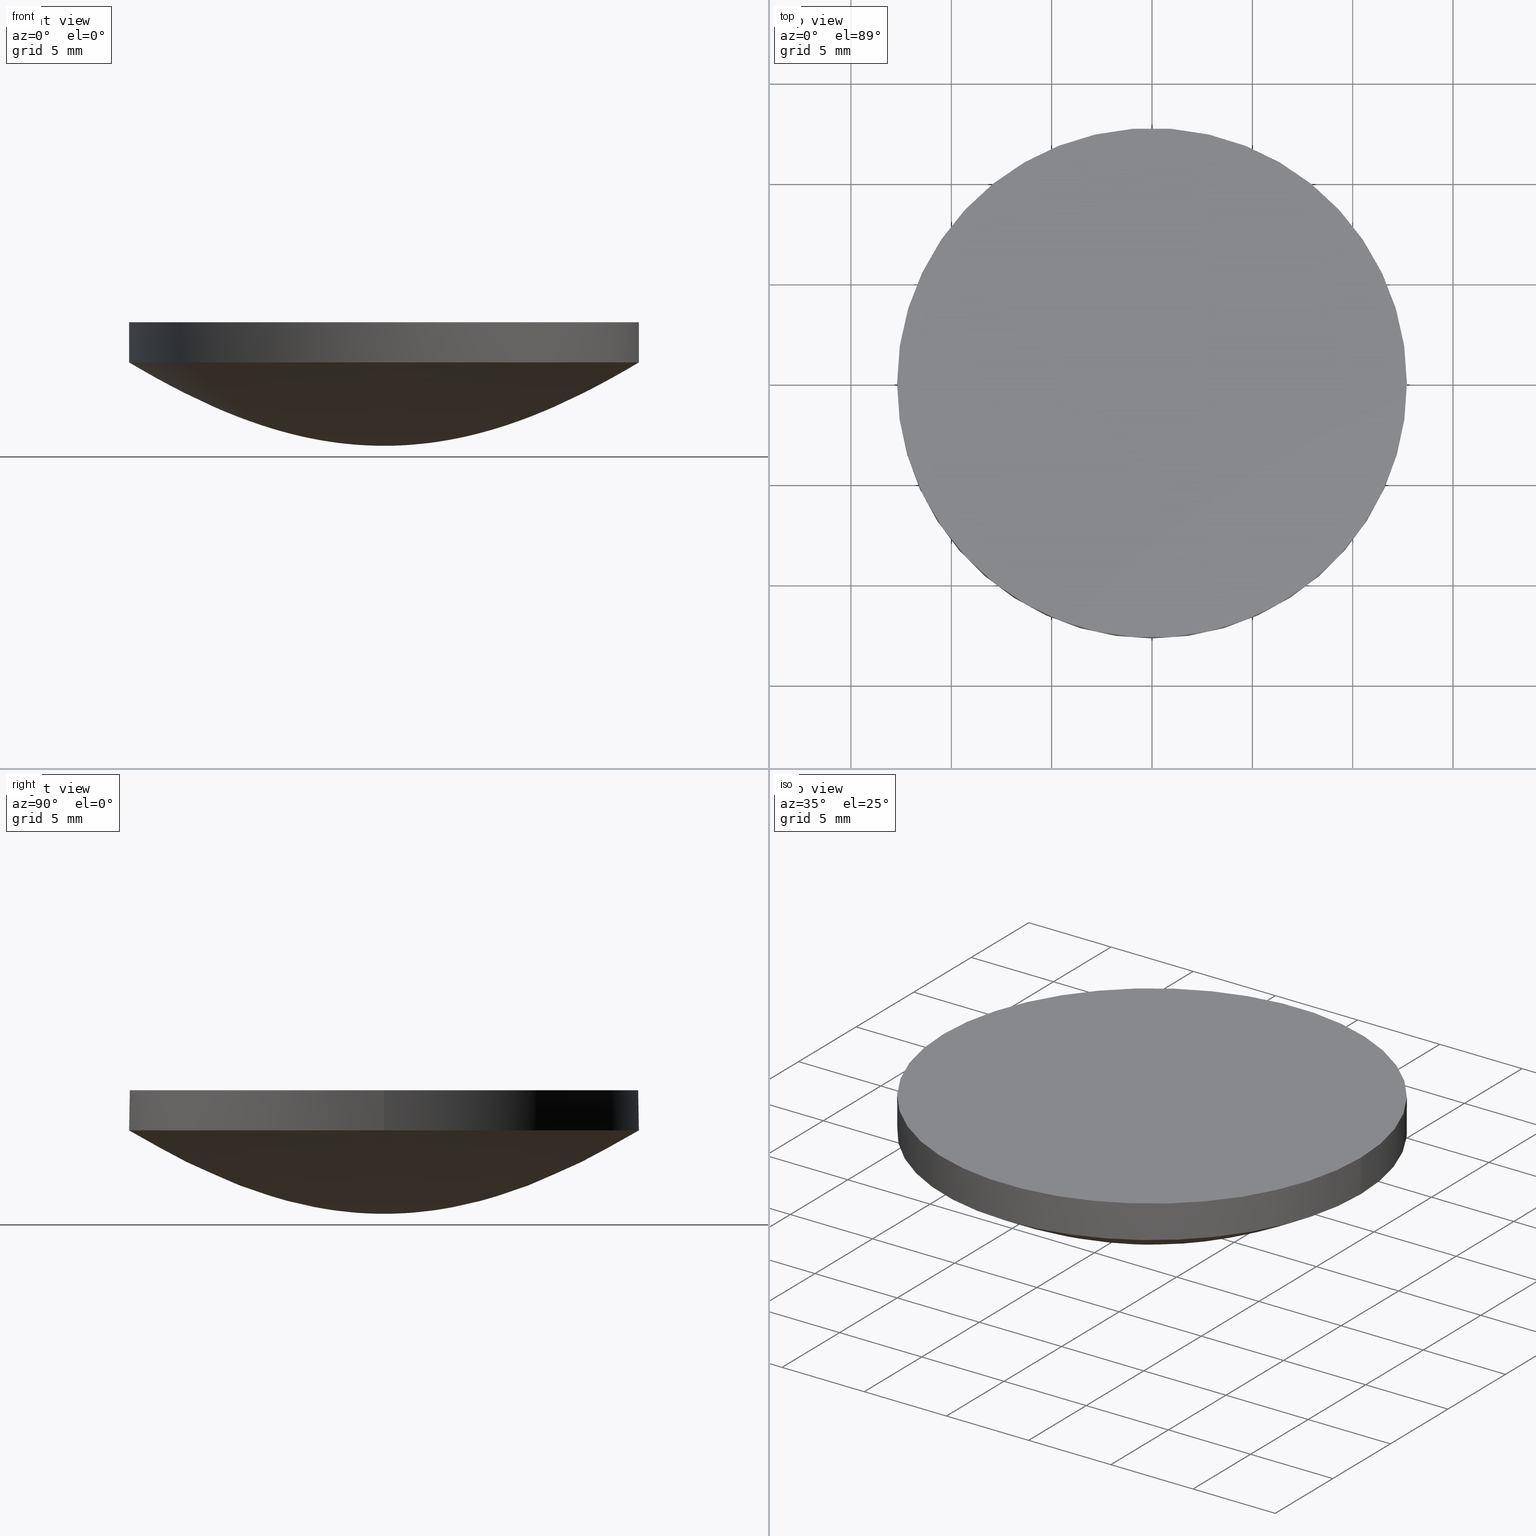
[diagram: canonical four-view strip — front | top / right | iso, engineering-drawing reading convention]
A machine part, canonical four-view strip (front | top / right | iso — engineering-drawing reading convention). The complete STEP part file that produces these views, byte-faithful:
ISO-10303-21;
HEADER;
FILE_DESCRIPTION (( 'STEP AP203' ),
    '1' );
FILE_NAME ('140003.STEP',
    '2021-03-15T05:14:26',
    ( '' ),
    ( '' ),
    'SwSTEP 2.0',
    'SolidWorks 2020',
    '' );
FILE_SCHEMA (( 'CONFIG_CONTROL_DESIGN' ));
ENDSEC;

DATA;
#1 = CARTESIAN_POINT ( 'NONE',  ( 3.533643029350660214, 3.533643029350660214, 0.3426028526766399240 ) ) ;
#2 = CARTESIAN_POINT ( 'NONE',  ( -1.210831606775240060E-15, -9.887190393330319793, 2.604185921054619879 ) ) ;
#3 = CARTESIAN_POINT ( 'NONE',  ( 3.533643029350660214, -3.533643029350660214, 0.3426028526766399240 ) ) ;
#4 = EDGE_CURVE ( 'NONE', #407, #146, #169, .T. ) ;
#5 = CARTESIAN_POINT ( 'NONE',  ( -0.2648454722978469955, 0.2648454722978469955, 0.000000000000000000 ) ) ;
#6 = CARTESIAN_POINT ( 'NONE',  ( -1.016444425008770159E-15, -8.299898597019639723, 1.861882940411679899 ) ) ;
#7 = CARTESIAN_POINT ( 'NONE',  ( -4.417324537593409595, 2.704831177879420105E-16, 0.5366860796835699610 ) ) ;
#8 = CARTESIAN_POINT ( 'NONE',  ( -1.856001890975160107, 1.136473387497079920E-16, 0.08818766913166510568 ) ) ;
#9 = CARTESIAN_POINT ( 'NONE',  ( -2.272946774994159840E-16, -1.856001890975160107, 0.08818766913166510568 ) ) ;
#10 = CARTESIAN_POINT ( 'NONE',  ( -6.711891333844019591, 6.711891333844019591, 1.230882758733029991 ) ) ;
#11 = CARTESIAN_POINT ( 'NONE',  ( 0.000000000000000000, 0.000000000000000000, 0.000000000000000000 ) ) ;
#12 = ORIENTED_EDGE ( 'NONE', *, *, #237, .F. ) ;
#13 = CARTESIAN_POINT ( 'NONE',  ( -6.006328210829880554, -6.006328210829880554, 0.9889388138680190732 ) ) ;
#14 = LINE ( 'NONE', #56, #486 ) ;
#15 = CARTESIAN_POINT ( 'NONE',  ( 0.9732602550666409336, -0.9732602550666409336, 0.01582297156970260271 ) ) ;
#16 = CARTESIAN_POINT ( 'NONE',  ( 0.000000000000000000, 0.000000000000000000, 0.000000000000000000 ) ) ;
#17 = AXIS2_PLACEMENT_3D ( 'NONE', #180, #139, #96 ) ;
#18 = CARTESIAN_POINT ( 'NONE',  ( -3.243421599182280136E-17, -0.2648454722978469955, 0.000000000000000000 ) ) ;
#19 = B_SPLINE_CURVE_WITH_KNOTS ( 'NONE', 3,
 ( #81, #374, #251, #2, #416, #6, #43, #371, #167, #334, #463, #50, #377, #9, #470, #383, #95 ),
 .UNSPECIFIED., .F., .F.,
 ( 4, 1, 1, 1, 1, 1, 1, 1, 1, 1, 1, 1, 1, 1, 4 ),
 ( 0.000000000000000000, 0.1791640992132879917, 0.2231798939688300065, 0.3101165522484389814, 0.3530374157725050255, 0.4378003480766050060, 0.4796424168566389978, 0.5623418750578970116, 0.6031992644791219771, 0.6840973856314990220, 0.7241381173626499912, 0.8036349153197349660, 0.8430909815456679723, 0.9412735238857999898, 1.000000000000000000 ),
 .UNSPECIFIED. ) ;
#20 = DATE_AND_TIME ( #389, #471 ) ;
#21 = CARTESIAN_POINT ( 'NONE',  ( 0.000000000000000000, 0.000000000000000000, 0.000000000000000000 ) ) ;
#22 = FACE_OUTER_BOUND ( 'NONE', #91, .T. ) ;
#23 = CARTESIAN_POINT ( 'NONE',  ( 0.2648454722978469955, -4.865132398773410035E-17, 0.000000000000000000 ) ) ;
#24 = CARTESIAN_POINT ( 'NONE',  ( 0.000000000000000000, 11.12995440244699985, 3.246620217075189885 ) ) ;
#25 = CARTESIAN_POINT ( 'NONE',  ( -8.219696238216940375E-16, -6.711891333844019591, 1.230882758733029991 ) ) ;
#26 = ORIENTED_EDGE ( 'NONE', *, *, #443, .F. ) ;
#27 = CARTESIAN_POINT ( 'NONE',  ( -1.555301434917140010E-15, -12.69999999999999929, 4.156662013466060124 ) ) ;
#28 = PERSON_AND_ORGANIZATION_ROLE ( 'creator' ) ;
#29 = CARTESIAN_POINT ( 'NONE',  ( 7.594569092104750396, -1.395099709432420083E-15, 1.566951937993940058 ) ) ;
#30 = CARTESIAN_POINT ( 'NONE',  ( 9.182068142219090845, -9.182068142219090845, 2.261185621592610051 ) ) ;
#31 = APPROVAL_ROLE ( '' ) ;
#32 = CARTESIAN_POINT ( 'NONE',  ( 0.000000000000000000, 7.594569092104750396, 1.566951937993940058 ) ) ;
#33 = SECURITY_CLASSIFICATION_LEVEL ( 'unclassified' ) ;
#34 = CARTESIAN_POINT ( 'NONE',  ( -9.887190393330330451, -9.887190393330319793, 2.604185921054619879 ) ) ;
#35 = EDGE_LOOP ( 'NONE', ( #72, #508, #116, #164 ) ) ;
#36 = CARTESIAN_POINT ( 'NONE',  ( 12.69999999999999929, -12.69999999999999929, 4.156662013466060124 ) ) ;
#37 = CARTESIAN_POINT ( 'NONE',  ( 0.000000000000000000, 6.711891333844019591, 1.230882758733029991 ) ) ;
#38 = CARTESIAN_POINT ( 'NONE',  ( 8.299898597019639723, 8.299898597019639723, 1.861882940411679899 ) ) ;
#39 = CARTESIAN_POINT ( 'NONE',  ( 3.533643029350660214, -6.491196937835459556E-16, 0.3426028526766399795 ) ) ;
#40 = CARTESIAN_POINT ( 'NONE',  ( 0.000000000000000000, 0.2648454722978469955, 0.000000000000000000 ) ) ;
#41 = CARTESIAN_POINT ( 'NONE',  ( -2.827615954408219778, 1.731415413892010225E-16, 0.2175848550245449986 ) ) ;
#42 = CARTESIAN_POINT ( 'NONE',  ( 2.827615954408219778, -5.194246241676019827E-16, 0.2175848550245449986 ) ) ;
#43 = CARTESIAN_POINT ( 'NONE',  ( -9.300664729549500750E-16, -7.594569092104750396, 1.566951937993940058 ) ) ;
#44 = CARTESIAN_POINT ( 'NONE',  ( 2.827615954408219778, -5.194246241676019827E-16, 0.2175848550245449986 ) ) ;
#45 = CARTESIAN_POINT ( 'NONE',  ( 0.000000000000000000, 4.417324537593409595, 0.5366860796835699610 ) ) ;
#46 = EDGE_LOOP ( 'NONE', ( #12, #420, #505, #193 ) ) ;
#47 = ADVANCED_FACE ( 'NONE', ( #160 ), #423, .T. ) ;
#48 = CARTESIAN_POINT ( 'NONE',  ( 2.827615954408220222, -2.827615954408220222, 0.2175848550245449986 ) ) ;
#49 = CARTESIAN_POINT ( 'NONE',  ( 0.000000000000000000, 0.2648454722978469955, 0.000000000000000000 ) ) ;
#50 = CARTESIAN_POINT ( 'NONE',  ( -4.327464625223639869E-16, -3.533643029350660214, 0.3426028526766399795 ) ) ;
#51 = CARTESIAN_POINT ( 'NONE',  ( -5.409662355758830350E-16, -4.417324537593409595, 0.5366860796835699610 ) ) ;
#52 = LOCAL_TIME ( 13, 14, 26.00000000000000000, #138 ) ;
#53 = CARTESIAN_POINT ( 'NONE',  ( 0.000000000000000000, 5.123128133085059766, 0.7216723207957019826 ) ) ;
#54 = CYLINDRICAL_SURFACE ( 'NONE', #186, 12.69999999999999929 ) ;
#55 = CARTESIAN_POINT ( 'NONE',  ( 0.000000000000000000, 1.856001890975160107, 0.08818766913166510568 ) ) ;
#56 = CARTESIAN_POINT ( 'NONE',  ( 12.70000000000000107, -8.881784197001250351E-16, 4.156662013466059236 ) ) ;
#57 = CARTESIAN_POINT ( 'NONE',  ( 0.000000000000000000, 11.12995440244699985, 3.246620217075189885 ) ) ;
#58 = APPLICATION_PROTOCOL_DEFINITION ( 'international standard', 'config_control_design', 1994, #310 ) ;
#59 = CARTESIAN_POINT ( 'NONE',  ( -3.851859888774471706E-31, 12.70000000000000284, 4.156662013466060124 ) ) ;
#60 =( NAMED_UNIT ( * ) PLANE_ANGLE_UNIT ( ) SI_UNIT ( $, .RADIAN. ) );
#61 = CARTESIAN_POINT ( 'NONE',  ( -12.00588458405299974, 7.351484063396529724E-16, 3.743064987588899939 ) ) ;
#62 = CARTESIAN_POINT ( 'NONE',  ( 12.00588458405299974, -2.205445219018960396E-15, 3.743064987588899939 ) ) ;
#63 = CARTESIAN_POINT ( 'NONE',  ( 0.000000000000000000, 0.9732602550666410446, 0.01582297156970259924 ) ) ;
#64 = CARTESIAN_POINT ( 'NONE',  ( -6.711891333844019591, 6.711891333844019591, 1.230882758733029991 ) ) ;
#65 = CARTESIAN_POINT ( 'NONE',  ( -9.887190393330319793, 9.887190393330319793, 2.604185921054619879 ) ) ;
#66 = CARTESIAN_POINT ( 'NONE',  ( 0.000000000000000000, 9.182068142219090845, 2.261185621592610051 ) ) ;
#67 = CARTESIAN_POINT ( 'NONE',  ( 0.000000000000000000, 9.182068142219090845, 2.261185621592610051 ) ) ;
#68 = CARTESIAN_POINT ( 'NONE',  ( 7.594569092104739738, -7.594569092104751284, 1.566951937993940058 ) ) ;
#69 = CARTESIAN_POINT ( 'NONE',  ( 8.299898597019639723, -8.299898597019639723, 1.861882940411679899 ) ) ;
#70 = AXIS2_PLACEMENT_3D ( 'NONE', #498, #122, #215 ) ;
#71 = CARTESIAN_POINT ( 'NONE',  ( -9.182068142219090845, 5.622395179960750118E-16, 2.261185621592610051 ) ) ;
#72 = ORIENTED_EDGE ( 'NONE', *, *, #503, .T. ) ;
#73 = CARTESIAN_POINT ( 'NONE',  ( -8.299898597019639723, -8.299898597019639723, 1.861882940411679899 ) ) ;
#74 = PRODUCT_DEFINITION_FORMATION_WITH_SPECIFIED_SOURCE ( '�κ�', '', #328, .NOT_KNOWN. ) ;
#75 = CARTESIAN_POINT ( 'NONE',  ( -6.006328210829880554, -6.006328210829880554, 0.9889388138680190732 ) ) ;
#76 = CARTESIAN_POINT ( 'NONE',  ( 9.182068142219090845, 9.182068142219090845, 2.261185621592610051 ) ) ;
#77 = CARTESIAN_POINT ( 'NONE',  ( -5.123128133085059766, 3.137011234902189770E-16, 0.7216723207957019826 ) ) ;
#78 = CARTESIAN_POINT ( 'NONE',  ( 0.000000000000000000, 6.711891333844019591, 1.230882758733029991 ) ) ;
#79 = CARTESIAN_POINT ( 'NONE',  ( 5.123128133085059766, -5.123128133085059766, 0.7216723207957019826 ) ) ;
#80 = CARTESIAN_POINT ( 'NONE',  ( 3.533643029350660214, -3.533643029350660214, 0.3426028526766399240 ) ) ;
#81 = CARTESIAN_POINT ( 'NONE',  ( -1.555301434917141588E-15, -12.70000000000000462, 4.156662013466060124 ) ) ;
#82 = CARTESIAN_POINT ( 'NONE',  ( 3.533643029350660214, -6.491196937835459556E-16, 0.3426028526766399795 ) ) ;
#83 = AXIS2_PLACEMENT_3D ( 'NONE', #515, #133, #409 ) ;
#84 = CARTESIAN_POINT ( 'NONE',  ( 0.9732602550666409336, 0.9732602550666409336, 0.01582297156970260271 ) ) ;
#85 = FACE_OUTER_BOUND ( 'NONE', #232, .T. ) ;
#86 = CARTESIAN_POINT ( 'NONE',  ( 5.123128133085059766, -9.411033704706559450E-16, 0.7216723207957019826 ) ) ;
#87 = CARTESIAN_POINT ( 'NONE',  ( 0.000000000000000000, 1.856001890975160107, 0.08818766913166510568 ) ) ;
#88 = DIRECTION ( 'NONE',  ( 1.000000000000000000, 0.000000000000000000, -6.829619984160658046E-17 ) ) ;
#89 = CARTESIAN_POINT ( 'NONE',  ( -1.856001890975160107, 1.856001890975160107, 0.08818766913166510568 ) ) ;
#90 = CARTESIAN_POINT ( 'NONE',  ( 0.000000000000000000, 0.2648454722978469955, 0.000000000000000000 ) ) ;
#91 = EDGE_LOOP ( 'NONE', ( #172, #26 ) ) ;
#92 = CARTESIAN_POINT ( 'NONE',  ( 1.856001890975160107, 1.856001890975160107, 0.08818766913166510568 ) ) ;
#93 = EDGE_CURVE ( 'NONE', #407, #189, #387, .T. ) ;
#94 = CARTESIAN_POINT ( 'NONE',  ( 0.000000000000000000, 0.000000000000000000, 0.000000000000000000 ) ) ;
#95 = CARTESIAN_POINT ( 'NONE',  ( 0.000000000000000000, 0.000000000000000000, 0.000000000000000000 ) ) ;
#96 = DIRECTION ( 'NONE',  ( 1.000000000000000000, 0.000000000000000000, -6.829619984160658046E-17 ) ) ;
#97 = CARTESIAN_POINT ( 'NONE',  ( 0.000000000000000000, 0.000000000000000000, 0.000000000000000000 ) ) ;
#98 = CARTESIAN_POINT ( 'NONE',  ( 0.000000000000000000, 12.00588458405299974, 3.743064987588899939 ) ) ;
#99 =( NAMED_UNIT ( * ) SI_UNIT ( $, .STERADIAN. ) SOLID_ANGLE_UNIT ( ) );
#100 = CARTESIAN_POINT ( 'NONE',  ( 0.000000000000000000, 12.69999999999999929, 4.156662013466060124 ) ) ;
#101 = APPROVAL_STATUS ( 'not_yet_approved' ) ;
#102 = CARTESIAN_POINT ( 'NONE',  ( 0.000000000000000000, 0.9732602550666410446, 0.01582297156970259924 ) ) ;
#103 = COORDINATED_UNIVERSAL_TIME_OFFSET ( 8, 0, .AHEAD. ) ;
#104 = CARTESIAN_POINT ( 'NONE',  ( -12.69999999999999929, -12.69999999999999929, 4.156662013466060124 ) ) ;
#105 = CARTESIAN_POINT ( 'NONE',  ( -9.182068142219090845, -9.182068142219090845, 2.261185621592610051 ) ) ;
#106 = CARTESIAN_POINT ( 'NONE',  ( 0.000000000000000000, 6.711891333844019591, 1.230882758733029991 ) ) ;
#107 = CARTESIAN_POINT ( 'NONE',  ( 0.000000000000000000, 12.69999999999999929, 4.156662013466060124 ) ) ;
#108 = PERSON_AND_ORGANIZATION ( #228, #388 ) ;
#109 = CARTESIAN_POINT ( 'NONE',  ( -8.299898597019639723, 5.082222125043859669E-16, 1.861882940411679899 ) ) ;
#110 = CARTESIAN_POINT ( 'NONE',  ( -1.124479035992150024E-15, -9.182068142219090845, 2.261185621592610051 ) ) ;
#111 = CARTESIAN_POINT ( 'NONE',  ( 12.69999999999999929, -2.332952152375710015E-15, 4.156662013466060124 ) ) ;
#112 = PRODUCT_DEFINITION_SHAPE ( 'NONE', 'NONE',  #464 ) ;
#113 = CARTESIAN_POINT ( 'NONE',  ( -9.300664729549500750E-16, -7.594569092104750396, 1.566951937993940058 ) ) ;
#114 = CC_DESIGN_APPROVAL ( #396, ( #487 ) ) ;
#115 = CARTESIAN_POINT ( 'NONE',  ( 4.417324537593409595, -8.114493533638249962E-16, 0.5366860796835699610 ) ) ;
#116 = ORIENTED_EDGE ( 'NONE', *, *, #4, .F. ) ;
#117 = CARTESIAN_POINT ( 'NONE',  ( -12.00588458405300152, -12.00588458405300152, 3.743064987588899939 ) ) ;
#118 = CARTESIAN_POINT ( 'NONE',  ( 0.000000000000000000, 1.856001890975160107, 0.08818766913166510568 ) ) ;
#119 = CARTESIAN_POINT ( 'NONE',  ( 0.000000000000000000, 0.000000000000000000, 0.000000000000000000 ) ) ;
#120 = CARTESIAN_POINT ( 'NONE',  ( 0.000000000000000000, 3.533643029350660214, 0.3426028526766399795 ) ) ;
#121 = CARTESIAN_POINT ( 'NONE',  ( 0.9732602550666410446, -1.787850084157050094E-16, 0.01582297156970259924 ) ) ;
#122 = DIRECTION ( 'NONE',  ( -0.000000000000000000, -0.000000000000000000, -1.000000000000000000 ) ) ;
#123 = CARTESIAN_POINT ( 'NONE',  ( -3.533643029350660214, 2.163732312611819934E-16, 0.3426028526766399795 ) ) ;
#124 = CARTESIAN_POINT ( 'NONE',  ( -0.2648454722978469955, -0.2648454722978469955, 0.000000000000000000 ) ) ;
#125 = ORIENTED_EDGE ( 'NONE', *, *, #355, .F. ) ;
#126 = CARTESIAN_POINT ( 'NONE',  ( 6.711891333844019591, 6.711891333844019591, 1.230882758733029991 ) ) ;
#127 = CARTESIAN_POINT ( 'NONE',  ( 0.000000000000000000, 6.006328210829879666, 0.9889388138680189622 ) ) ;
#128 = EDGE_CURVE ( 'NONE', #495, #313, #511, .T. ) ;
#129 = CARTESIAN_POINT ( 'NONE',  ( -3.533643029350660214, 3.533643029350660214, 0.3426028526766399240 ) ) ;
#130 = PERSON_AND_ORGANIZATION ( #228, #388 ) ;
#131 = DIRECTION ( 'NONE',  ( 6.993530863780509846E-17, 4.890947394265059749E-33, 1.000000000000000000 ) ) ;
#132 = CARTESIAN_POINT ( 'NONE',  ( -0.2648454722978469955, 0.2648454722978469955, 0.000000000000000000 ) ) ;
#133 = DIRECTION ( 'NONE',  ( -0.000000000000000000, -0.000000000000000000, -1.000000000000000000 ) ) ;
#134 = CARTESIAN_POINT ( 'NONE',  ( 12.70000000000000107, -8.881784197001250351E-16, 6.159999999999998366 ) ) ;
#135 =( LENGTH_UNIT ( ) NAMED_UNIT ( * ) SI_UNIT ( .MILLI., .METRE. ) );
#136 = CARTESIAN_POINT ( 'NONE',  ( -1.191900056104700145E-16, -0.9732602550666410446, 0.01582297156970259924 ) ) ;
#137 = PRODUCT_RELATED_PRODUCT_CATEGORY ( 'detail', '', ( #328 ) ) ;
#138 = COORDINATED_UNIVERSAL_TIME_OFFSET ( 8, 0, .AHEAD. ) ;
#139 = DIRECTION ( 'NONE',  ( -6.993530863780509846E-17, -4.890947394265059749E-33, -1.000000000000000000 ) ) ;
#140 = DIRECTION ( 'NONE',  ( 1.000000000000000000, 0.000000000000000000, -6.829619984160658046E-17 ) ) ;
#141 = CARTESIAN_POINT ( 'NONE',  ( -11.12995440244699985, -11.12995440244699985, 3.246620217075190773 ) ) ;
#142 = COORDINATED_UNIVERSAL_TIME_OFFSET ( 8, 0, .AHEAD. ) ;
#143 = APPROVAL ( #101, 'δָ��' ) ;
#144 = COORDINATED_UNIVERSAL_TIME_OFFSET ( 8, 0, .AHEAD. ) ;
#145 = CARTESIAN_POINT ( 'NONE',  ( -8.299898597019639723, -8.299898597019639723, 1.861882940411679899 ) ) ;
#146 = VERTEX_POINT ( 'NONE', #119 ) ;
#147 = CARTESIAN_POINT ( 'NONE',  ( 12.00588458405300152, -12.00588458405300152, 3.743064987588899939 ) ) ;
#148 = CARTESIAN_POINT ( 'NONE',  ( -7.355630618021261203E-16, -6.006328210829879666, 0.9889388138680189622 ) ) ;
#149 = CARTESIAN_POINT ( 'NONE',  ( 9.887190393330330451, 9.887190393330319793, 2.604185921054619879 ) ) ;
#150 = CC_DESIGN_PERSON_AND_ORGANIZATION_ASSIGNMENT ( #270, #436, ( #464 ) ) ;
#151 = COORDINATED_UNIVERSAL_TIME_OFFSET ( 8, 0, .AHEAD. ) ;
#152 = CARTESIAN_POINT ( 'NONE',  ( 0.000000000000000000, 7.594569092104750396, 1.566951937993940058 ) ) ;
#153 = CARTESIAN_POINT ( 'NONE',  ( 11.12995440244699985, -11.12995440244710110, 3.246620217075190773 ) ) ;
#154 = PERSON_AND_ORGANIZATION ( #228, #388 ) ;
#155 = CARTESIAN_POINT ( 'NONE',  ( -9.887190393330330451, -9.887190393330319793, 2.604185921054619879 ) ) ;
#156 = CARTESIAN_POINT ( 'NONE',  ( 5.123128133085059766, -5.123128133085059766, 0.7216723207957019826 ) ) ;
#157 = CARTESIAN_POINT ( 'NONE',  ( 7.594569092104750396, -1.395099709432420083E-15, 1.566951937993940058 ) ) ;
#158 =( GEOMETRIC_REPRESENTATION_CONTEXT ( 3 ) GLOBAL_UNCERTAINTY_ASSIGNED_CONTEXT ( ( #517 ) ) GLOBAL_UNIT_ASSIGNED_CONTEXT ( ( #135, #60, #99 ) ) REPRESENTATION_CONTEXT ( 'NONE', 'WORKASPACE' ) );
#159 = CARTESIAN_POINT ( 'NONE',  ( -2.827615954408220222, -2.827615954408220222, 0.2175848550245449986 ) ) ;
#160 = FACE_OUTER_BOUND ( 'NONE', #449, .T. ) ;
#161 = ADVANCED_FACE ( 'NONE', ( #85 ), #54, .T. ) ;
#162 = CARTESIAN_POINT ( 'NONE',  ( 6.006328210829880554, -6.006328210829880554, 0.9889388138680190732 ) ) ;
#163 = CARTESIAN_POINT ( 'NONE',  ( 5.123128133085059766, -9.411033704706559450E-16, 0.7216723207957019826 ) ) ;
#164 = ORIENTED_EDGE ( 'NONE', *, *, #93, .T. ) ;
#165 = CARTESIAN_POINT ( 'NONE',  ( 6.006328210829879666, -1.103344592703189920E-15, 0.9889388138680189622 ) ) ;
#166 = CARTESIAN_POINT ( 'NONE',  ( -0.2648454722978469955, 1.621710799591140068E-17, 0.000000000000000000 ) ) ;
#167 = CARTESIAN_POINT ( 'NONE',  ( -7.355630618021261203E-16, -6.006328210829879666, 0.9889388138680189622 ) ) ;
#168 = CARTESIAN_POINT ( 'NONE',  ( 0.000000000000000000, 2.827615954408219778, 0.2175848550245449986 ) ) ;
#169 = B_SPLINE_CURVE_WITH_KNOTS ( 'NONE', 3,
 ( #426, #248, #330, #467, #460, #340, #208, #78, #411, #259, #337, #501, #287, #255, #296, #40, #262 ),
 .UNSPECIFIED., .F., .F.,
 ( 4, 1, 1, 1, 1, 1, 1, 1, 1, 1, 1, 1, 1, 1, 4 ),
 ( 0.000000000000000000, 0.1791640992132879917, 0.2231798939688300065, 0.3101165522484389814, 0.3530374157725050255, 0.4378003480766050060, 0.4796424168566389978, 0.5623418750578970116, 0.6031992644791219771, 0.6840973856314990220, 0.7241381173626499912, 0.8036349153197349660, 0.8430909815456679723, 0.9412735238857999898, 1.000000000000000000 ),
 .UNSPECIFIED. ) ;
#170 = CC_DESIGN_DATE_AND_TIME_ASSIGNMENT ( #226, #392, ( #464 ) ) ;
#171 = CARTESIAN_POINT ( 'NONE',  ( -1.856001890975160107, -1.856001890975160107, 0.08818766913166510568 ) ) ;
#172 = ORIENTED_EDGE ( 'NONE', *, *, #490, .F. ) ;
#173 = CARTESIAN_POINT ( 'NONE',  ( 0.000000000000000000, 4.417324537593409595, 0.5366860796835699610 ) ) ;
#174 = APPLICATION_CONTEXT ( 'configuration controlled 3d designs of mechanical parts and assemblies' ) ;
#175 = MECHANICAL_CONTEXT ( 'NONE', #174, 'mechanical' ) ;
#176 = VERTEX_POINT ( 'NONE', #368 ) ;
#177 = CARTESIAN_POINT ( 'NONE',  ( 0.000000000000000000, 7.594569092104750396, 1.566951937993940058 ) ) ;
#178 = CARTESIAN_POINT ( 'NONE',  ( 0.000000000000000000, 0.000000000000000000, 0.000000000000000000 ) ) ;
#179 = DIRECTION ( 'NONE',  ( -1.000000000000000000, 0.000000000000000000, 0.000000000000000000 ) ) ;
#180 = CARTESIAN_POINT ( 'NONE',  ( 1.028282480094215200E-15, -8.881784197001250351E-16, 6.159999999999999254 ) ) ;
#181 = PERSON_AND_ORGANIZATION_ROLE ( 'design_owner' ) ;
#182 = CARTESIAN_POINT ( 'NONE',  ( 0.000000000000000000, 0.2648454722978469955, 0.000000000000000000 ) ) ;
#183 = CARTESIAN_POINT ( 'NONE',  ( 0.9732602550666410446, -1.787850084157050094E-16, 0.01582297156970259924 ) ) ;
#184 = CARTESIAN_POINT ( 'NONE',  ( 1.028282480094215200E-15, -8.881784197001250351E-16, 6.159999999999999254 ) ) ;
#185 = CARTESIAN_POINT ( 'NONE',  ( 0.000000000000000000, 0.000000000000000000, 0.000000000000000000 ) ) ;
#186 = AXIS2_PLACEMENT_3D ( 'NONE', #219, #298, #204 ) ;
#187 = CARTESIAN_POINT ( 'NONE',  ( 0.000000000000000000, 9.887190393330319793, 2.604185921054619879 ) ) ;
#188 = CARTESIAN_POINT ( 'NONE',  ( 0.000000000000000000, 9.182068142219090845, 2.261185621592610051 ) ) ;
#189 = VERTEX_POINT ( 'NONE', #544 ) ;
#190 = CARTESIAN_POINT ( 'NONE',  ( -11.12995440244699985, -11.12995440244699985, 3.246620217075190773 ) ) ;
#191 = CALENDAR_DATE ( 2021, 15, 3 ) ;
#192 = CARTESIAN_POINT ( 'NONE',  ( 0.000000000000000000, 8.299898597019639723, 1.861882940411679899 ) ) ;
#193 = ORIENTED_EDGE ( 'NONE', *, *, #4, .T. ) ;
#194 = CARTESIAN_POINT ( 'NONE',  ( 0.000000000000000000, 8.299898597019639723, 1.861882940411679899 ) ) ;
#195 =( BOUNDED_SURFACE ( )  B_SPLINE_SURFACE ( 3, 2, ( 
 ( #307, #304, #519, #104, #306, #473, #390, #475, #100 ),
 ( #98, #267, #61, #435, #431, #269, #62, #433, #227 ),
 ( #57, #229, #393, #141, #299, #273, #437, #395, #24 ),
 ( #187, #354, #526, #34, #199, #403, #360, #400, #282 ),
 ( #188, #491, #71, #105, #110, #533, #441, #482, #66 ),
 ( #439, #312, #525, #145, #231, #362, #280, #536, #192 ),
 ( #444, #309, #274, #446, #236, #68, #29, #277, #152 ),
 ( #37, #64, #240, #397, #25, #484, #357, #529, #106 ),
 ( #406, #448, #275, #75, #148, #316, #244, #488, #127 ),
 ( #53, #289, #77, #370, #325, #156, #163, #494, #250 ),
 ( #45, #410, #459, #286, #261, #321, #115, #295, #258 ),
 ( #247, #214, #415, #203, #333, #80, #39, #1, #451 ),
 ( #497, #367, #543, #159, #284, #425, #42, #364, #376 ),
 ( #118, #455, #8, #171, #336, #539, #207, #419, #87 ),
 ( #504, #500, #466, #210, #373, #329, #121, #84, #254 ),
 ( #90, #5, #166, #124, #292, #507, #462, #422, #49 ),
 ( #223, #178, #11, #16, #339, #97, #379, #432, #265 ) ),
 .UNSPECIFIED., .F., .T., .T. ) 
 B_SPLINE_SURFACE_WITH_KNOTS ( ( 4, 1, 1, 1, 1, 1, 1, 1, 1, 1, 1, 1, 1, 1, 4 ),
 ( 3, 2, 2, 2, 3 ),
 ( 0.000000000000000000, 0.1791640992132879917, 0.2231798939688300065, 0.3101165522484389814, 0.3530374157725050255, 0.4378003480766050060, 0.4796424168566389978, 0.5623418750578970116, 0.6031992644791219771, 0.6840973856314990220, 0.7241381173626499912, 0.8036349153197349660, 0.8430909815456679723, 0.9412735238857999898, 1.000000000000000000 ),
 ( 0.000000000000000000, 90.00000000000000000, 180.0000000000000000, 270.0000000000000000, 360.0000000000000000 ),
 .UNSPECIFIED. ) 
 GEOMETRIC_REPRESENTATION_ITEM ( )  RATIONAL_B_SPLINE_SURFACE ( (
 ( 1.000000000000000000, 0.7071067811865480168, 1.000000000000000000, 0.7071067811865480168, 1.000000000000000000, 0.7071067811865480168, 1.000000000000000000, 0.7071067811865480168, 1.000000000000000000),
 ( 1.000000000000000000, 0.7071067811865480168, 1.000000000000000000, 0.7071067811865480168, 1.000000000000000000, 0.7071067811865480168, 1.000000000000000000, 0.7071067811865480168, 1.000000000000000000),
 ( 1.000000000000000000, 0.7071067811865480168, 1.000000000000000000, 0.7071067811865480168, 1.000000000000000000, 0.7071067811865480168, 1.000000000000000000, 0.7071067811865480168, 1.000000000000000000),
 ( 1.000000000000000000, 0.7071067811865480168, 1.000000000000000000, 0.7071067811865480168, 1.000000000000000000, 0.7071067811865480168, 1.000000000000000000, 0.7071067811865480168, 1.000000000000000000),
 ( 1.000000000000000000, 0.7071067811865480168, 1.000000000000000000, 0.7071067811865480168, 1.000000000000000000, 0.7071067811865480168, 1.000000000000000000, 0.7071067811865480168, 1.000000000000000000),
 ( 1.000000000000000000, 0.7071067811865480168, 1.000000000000000000, 0.7071067811865480168, 1.000000000000000000, 0.7071067811865480168, 1.000000000000000000, 0.7071067811865480168, 1.000000000000000000),
 ( 1.000000000000000000, 0.7071067811865480168, 1.000000000000000000, 0.7071067811865480168, 1.000000000000000000, 0.7071067811865480168, 1.000000000000000000, 0.7071067811865480168, 1.000000000000000000),
 ( 1.000000000000000000, 0.7071067811865480168, 1.000000000000000000, 0.7071067811865480168, 1.000000000000000000, 0.7071067811865480168, 1.000000000000000000, 0.7071067811865480168, 1.000000000000000000),
 ( 1.000000000000000000, 0.7071067811865480168, 1.000000000000000000, 0.7071067811865480168, 1.000000000000000000, 0.7071067811865480168, 1.000000000000000000, 0.7071067811865480168, 1.000000000000000000),
 ( 1.000000000000000000, 0.7071067811865480168, 1.000000000000000000, 0.7071067811865480168, 1.000000000000000000, 0.7071067811865480168, 1.000000000000000000, 0.7071067811865480168, 1.000000000000000000),
 ( 1.000000000000000000, 0.7071067811865480168, 1.000000000000000000, 0.7071067811865480168, 1.000000000000000000, 0.7071067811865480168, 1.000000000000000000, 0.7071067811865480168, 1.000000000000000000),
 ( 1.000000000000000000, 0.7071067811865480168, 1.000000000000000000, 0.7071067811865480168, 1.000000000000000000, 0.7071067811865480168, 1.000000000000000000, 0.7071067811865480168, 1.000000000000000000),
 ( 1.000000000000000000, 0.7071067811865480168, 1.000000000000000000, 0.7071067811865480168, 1.000000000000000000, 0.7071067811865480168, 1.000000000000000000, 0.7071067811865480168, 1.000000000000000000),
 ( 1.000000000000000000, 0.7071067811865480168, 1.000000000000000000, 0.7071067811865480168, 1.000000000000000000, 0.7071067811865480168, 1.000000000000000000, 0.7071067811865480168, 1.000000000000000000),
 ( 1.000000000000000000, 0.7071067811865480168, 1.000000000000000000, 0.7071067811865480168, 1.000000000000000000, 0.7071067811865480168, 1.000000000000000000, 0.7071067811865480168, 1.000000000000000000),
 ( 1.000000000000000000, 0.7071067811865480168, 1.000000000000000000, 0.7071067811865480168, 1.000000000000000000, 0.7071067811865480168, 1.000000000000000000, 0.7071067811865480168, 1.000000000000000000),
 ( 1.000000000000000000, 0.7071067811865480168, 1.000000000000000000, 0.7071067811865480168, 1.000000000000000000, 0.7071067811865480168, 1.000000000000000000, 0.7071067811865480168, 1.000000000000000000) ) ) 
 REPRESENTATION_ITEM ( '' )  SURFACE ( )  );
#196 = APPROVAL_DATE_TIME ( #319, #396 ) ;
#197 = CARTESIAN_POINT ( 'NONE',  ( 0.000000000000000000, 11.12995440244699985, 3.246620217075189885 ) ) ;
#198 = DATE_AND_TIME ( #279, #230 ) ;
#199 = CARTESIAN_POINT ( 'NONE',  ( -1.210831606775240060E-15, -9.887190393330319793, 2.604185921054619879 ) ) ;
#200 = CARTESIAN_POINT ( 'NONE',  ( 12.00588458405300152, 12.00588458405300152, 3.743064987588899939 ) ) ;
#201 = ORIENTED_EDGE ( 'NONE', *, *, #503, .F. ) ;
#202 = CARTESIAN_POINT ( 'NONE',  ( -7.594569092104739738, 7.594569092104751284, 1.566951937993940058 ) ) ;
#203 = CARTESIAN_POINT ( 'NONE',  ( -3.533643029350660214, -3.533643029350660214, 0.3426028526766399240 ) ) ;
#204 = DIRECTION ( 'NONE',  ( 1.000000000000000000, 0.000000000000000000, -6.829619984160658046E-17 ) ) ;
#205 = CARTESIAN_POINT ( 'NONE',  ( -2.827615954408220222, -2.827615954408220222, 0.2175848550245449986 ) ) ;
#206 = APPROVAL_PERSON_ORGANIZATION ( #154, #396, #31 ) ;
#207 = CARTESIAN_POINT ( 'NONE',  ( 1.856001890975160107, -3.409420162491239760E-16, 0.08818766913166510568 ) ) ;
#208 = CARTESIAN_POINT ( 'NONE',  ( 0.000000000000000000, 7.594569092104750396, 1.566951937993940058 ) ) ;
#209 = CARTESIAN_POINT ( 'NONE',  ( -7.355630618021261203E-16, -6.006328210829879666, 0.9889388138680189622 ) ) ;
#210 = CARTESIAN_POINT ( 'NONE',  ( -0.9732602550666409336, -0.9732602550666409336, 0.01582297156970260271 ) ) ;
#211 = CARTESIAN_POINT ( 'NONE',  ( 8.881784197001250351E-16, -8.881784197001250351E-16, 4.156662013466060124 ) ) ;
#212 = CARTESIAN_POINT ( 'NONE',  ( -6.711891333844019591, 4.109848119108470188E-16, 1.230882758733029991 ) ) ;
#213 = CC_DESIGN_PERSON_AND_ORGANIZATION_ASSIGNMENT ( #108, #235, ( #487 ) ) ;
#214 = CARTESIAN_POINT ( 'NONE',  ( -3.533643029350660214, 3.533643029350660214, 0.3426028526766399240 ) ) ;
#215 = DIRECTION ( 'NONE',  ( -1.000000000000000000, 0.000000000000000000, 0.000000000000000000 ) ) ;
#216 = CARTESIAN_POINT ( 'NONE',  ( -1.856001890975160107, -1.856001890975160107, 0.08818766913166510568 ) ) ;
#217 = CIRCLE ( 'NONE', #83, 12.70000000000000284 ) ;
#218 = APPROVAL_ROLE ( '' ) ;
#219 = CARTESIAN_POINT ( 'NONE',  ( 8.881784197001250351E-16, -8.881784197001250351E-16, 4.156662013466060124 ) ) ;
#220 = CARTESIAN_POINT ( 'NONE',  ( 4.417324537593410483, 4.417324537593410483, 0.5366860796835699610 ) ) ;
#221 = DIRECTION ( 'NONE',  ( -0.000000000000000000, -0.000000000000000000, -1.000000000000000000 ) ) ;
#222 = CARTESIAN_POINT ( 'NONE',  ( -0.9732602550666409336, 0.9732602550666409336, 0.01582297156970260271 ) ) ;
#223 = CARTESIAN_POINT ( 'NONE',  ( 0.000000000000000000, 0.000000000000000000, 0.000000000000000000 ) ) ;
#224 = CARTESIAN_POINT ( 'NONE',  ( -0.9732602550666410446, 5.959500280523489629E-17, 0.01582297156970259924 ) ) ;
#225 = CARTESIAN_POINT ( 'NONE',  ( -0.2648454722978469955, -0.2648454722978469955, 0.000000000000000000 ) ) ;
#226 = DATE_AND_TIME ( #434, #52 ) ;
#227 = CARTESIAN_POINT ( 'NONE',  ( 0.000000000000000000, 12.00588458405299974, 3.743064987588899939 ) ) ;
#228 = PERSON ( 'δָ��', 'δָ��', 'δָ��', ('δָ��'), ('δָ��'), ('δָ��') ) ;
#229 = CARTESIAN_POINT ( 'NONE',  ( -11.12995440244699985, 11.12995440244699985, 3.246620217075190773 ) ) ;
#230 = LOCAL_TIME ( 13, 14, 26.00000000000000000, #151 ) ;
#231 = CARTESIAN_POINT ( 'NONE',  ( -1.016444425008770159E-15, -8.299898597019639723, 1.861882940411679899 ) ) ;
#232 = EDGE_LOOP ( 'NONE', ( #326, #380, #241, #456, #534 ) ) ;
#233 = CARTESIAN_POINT ( 'NONE',  ( -9.887190393330319793, 6.054158033876220021E-16, 2.604185921054619879 ) ) ;
#234 = CARTESIAN_POINT ( 'NONE',  ( -12.00588458405299974, 7.351484063396529724E-16, 3.743064987588899939 ) ) ;
#235 = PERSON_AND_ORGANIZATION_ROLE ( 'classification_officer' ) ;
#236 = CARTESIAN_POINT ( 'NONE',  ( -9.300664729549500750E-16, -7.594569092104750396, 1.566951937993940058 ) ) ;
#237 = EDGE_CURVE ( 'NONE', #176, #146, #19, .T. ) ;
#238 = CARTESIAN_POINT ( 'NONE',  ( 8.299898597019639723, -1.524666637513159972E-15, 1.861882940411679899 ) ) ;
#239 = PERSON_AND_ORGANIZATION ( #228, #388 ) ;
#240 = CARTESIAN_POINT ( 'NONE',  ( -6.711891333844019591, 4.109848119108470188E-16, 1.230882758733029991 ) ) ;
#241 = ORIENTED_EDGE ( 'NONE', *, *, #443, .T. ) ;
#242 = AXIS2_PLACEMENT_3D ( 'NONE', #345, #514, #428 ) ;
#243 = FACE_OUTER_BOUND ( 'NONE', #46, .T. ) ;
#244 = CARTESIAN_POINT ( 'NONE',  ( 6.006328210829879666, -1.103344592703189920E-15, 0.9889388138680189622 ) ) ;
#245 = CARTESIAN_POINT ( 'NONE',  ( -1.124479035992150024E-15, -9.182068142219090845, 2.261185621592610051 ) ) ;
#246 = CC_DESIGN_PERSON_AND_ORGANIZATION_ASSIGNMENT ( #394, #28, ( #74 ) ) ;
#247 = CARTESIAN_POINT ( 'NONE',  ( 0.000000000000000000, 3.533643029350660214, 0.3426028526766399795 ) ) ;
#248 = CARTESIAN_POINT ( 'NONE',  ( 0.000000000000000000, 12.00588458405299974, 3.743064987588899939 ) ) ;
#249 = CARTESIAN_POINT ( 'NONE',  ( 0.000000000000000000, 2.827615954408219778, 0.2175848550245449986 ) ) ;
#250 = CARTESIAN_POINT ( 'NONE',  ( 0.000000000000000000, 5.123128133085059766, 0.7216723207957019826 ) ) ;
#251 = CARTESIAN_POINT ( 'NONE',  ( -1.363026303361279971E-15, -11.12995440244699985, 3.246620217075189885 ) ) ;
#252 = AXIS2_PLACEMENT_3D ( 'NONE', #429, #221, #179 ) ;
#253 = CARTESIAN_POINT ( 'NONE',  ( -6.274022469804369679E-16, -5.123128133085059766, 0.7216723207957019826 ) ) ;
#254 = CARTESIAN_POINT ( 'NONE',  ( 0.000000000000000000, 0.9732602550666410446, 0.01582297156970259924 ) ) ;
#255 = CARTESIAN_POINT ( 'NONE',  ( 0.000000000000000000, 1.856001890975160107, 0.08818766913166510568 ) ) ;
#256 = EDGE_CURVE ( 'NONE', #189, #452, #14, .T. ) ;
#257 = CARTESIAN_POINT ( 'NONE',  ( 3.533643029350660214, 3.533643029350660214, 0.3426028526766399240 ) ) ;
#258 = CARTESIAN_POINT ( 'NONE',  ( 0.000000000000000000, 4.417324537593409595, 0.5366860796835699610 ) ) ;
#259 = CARTESIAN_POINT ( 'NONE',  ( 0.000000000000000000, 5.123128133085059766, 0.7216723207957019826 ) ) ;
#260 = CARTESIAN_POINT ( 'NONE',  ( -4.327464625223639869E-16, -3.533643029350660214, 0.3426028526766399795 ) ) ;
#261 = CARTESIAN_POINT ( 'NONE',  ( -5.409662355758830350E-16, -4.417324537593409595, 0.5366860796835699610 ) ) ;
#262 = CARTESIAN_POINT ( 'NONE',  ( 0.000000000000000000, 0.000000000000000000, 0.000000000000000000 ) ) ;
#263 = CARTESIAN_POINT ( 'NONE',  ( 7.594569092104751284, 7.594569092104739738, 1.566951937993940058 ) ) ;
#264 = AXIS2_PLACEMENT_3D ( 'NONE', #94, #382, #272 ) ;
#265 = CARTESIAN_POINT ( 'NONE',  ( 0.000000000000000000, 0.000000000000000000, 0.000000000000000000 ) ) ;
#266 = CARTESIAN_POINT ( 'NONE',  ( -12.69999999999999751, 6.671230152170134961E-16, 6.160000000000000142 ) ) ;
#267 = CARTESIAN_POINT ( 'NONE',  ( -12.00588458405300152, 12.00588458405300152, 3.743064987588899939 ) ) ;
#268 = DIRECTION ( 'NONE',  ( 1.000000000000000000, 0.000000000000000000, -0.000000000000000000 ) ) ;
#269 = CARTESIAN_POINT ( 'NONE',  ( 12.00588458405300152, -12.00588458405300152, 3.743064987588899939 ) ) ;
#270 = PERSON_AND_ORGANIZATION ( #228, #388 ) ;
#271 = CARTESIAN_POINT ( 'NONE',  ( -0.9732602550666409336, -0.9732602550666409336, 0.01582297156970260271 ) ) ;
#272 = DIRECTION ( 'NONE',  ( 1.000000000000000000, 0.000000000000000000, 0.000000000000000000 ) ) ;
#273 = CARTESIAN_POINT ( 'NONE',  ( 11.12995440244699985, -11.12995440244710110, 3.246620217075190773 ) ) ;
#274 = CARTESIAN_POINT ( 'NONE',  ( -7.594569092104750396, 4.650332364774750375E-16, 1.566951937993940058 ) ) ;
#275 = CARTESIAN_POINT ( 'NONE',  ( -6.006328210829879666, 3.677815309010630601E-16, 0.9889388138680189622 ) ) ;
#276 = CARTESIAN_POINT ( 'NONE',  ( -12.69999999999999929, 12.69999999999999929, 4.156662013466060124 ) ) ;
#277 = CARTESIAN_POINT ( 'NONE',  ( 7.594569092104751284, 7.594569092104739738, 1.566951937993940058 ) ) ;
#278 = CARTESIAN_POINT ( 'NONE',  ( 0.000000000000000000, 9.887190393330319793, 2.604185921054619879 ) ) ;
#279 = CALENDAR_DATE ( 2021, 15, 3 ) ;
#280 = CARTESIAN_POINT ( 'NONE',  ( 8.299898597019639723, -1.524666637513159972E-15, 1.861882940411679899 ) ) ;
#281 = CARTESIAN_POINT ( 'NONE',  ( 0.000000000000000000, 12.00588458405299974, 3.743064987588899939 ) ) ;
#282 = CARTESIAN_POINT ( 'NONE',  ( 0.000000000000000000, 9.887190393330319793, 2.604185921054619879 ) ) ;
#283 = CARTESIAN_POINT ( 'NONE',  ( 12.00588458405299974, -2.205445219018960396E-15, 3.743064987588899939 ) ) ;
#284 = CARTESIAN_POINT ( 'NONE',  ( -3.462830827784010095E-16, -2.827615954408219778, 0.2175848550245449986 ) ) ;
#285 = CARTESIAN_POINT ( 'NONE',  ( -6.006328210829880554, 6.006328210829880554, 0.9889388138680190732 ) ) ;
#286 = CARTESIAN_POINT ( 'NONE',  ( -4.417324537593410483, -4.417324537593410483, 0.5366860796835699610 ) ) ;
#287 = CARTESIAN_POINT ( 'NONE',  ( 0.000000000000000000, 2.827615954408219778, 0.2175848550245449986 ) ) ;
#288 = CARTESIAN_POINT ( 'NONE',  ( 4.417324537593409595, -8.114493533638249962E-16, 0.5366860796835699610 ) ) ;
#289 = CARTESIAN_POINT ( 'NONE',  ( -5.123128133085059766, 5.123128133085059766, 0.7216723207957019826 ) ) ;
#290 = DIRECTION ( 'NONE',  ( 6.993530863780509846E-17, 4.890947394265059749E-33, 1.000000000000000000 ) ) ;
#291 = CARTESIAN_POINT ( 'NONE',  ( -5.123128133085059766, -5.123128133085059766, 0.7216723207957019826 ) ) ;
#292 = CARTESIAN_POINT ( 'NONE',  ( -3.243421599182280136E-17, -0.2648454722978469955, 0.000000000000000000 ) ) ;
#293 = CARTESIAN_POINT ( 'NONE',  ( -12.69999999999999751, 6.671230152170134961E-16, 4.156662013466061012 ) ) ;
#294 = CARTESIAN_POINT ( 'NONE',  ( 0.000000000000000000, 4.417324537593409595, 0.5366860796835699610 ) ) ;
#295 = CARTESIAN_POINT ( 'NONE',  ( 4.417324537593410483, 4.417324537593410483, 0.5366860796835699610 ) ) ;
#296 = CARTESIAN_POINT ( 'NONE',  ( 0.000000000000000000, 0.9732602550666410446, 0.01582297156970259924 ) ) ;
#297 = CARTESIAN_POINT ( 'NONE',  ( 0.000000000000000000, 6.006328210829879666, 0.9889388138680189622 ) ) ;
#298 = DIRECTION ( 'NONE',  ( 6.993530863780509846E-17, 4.890947394265059749E-33, 1.000000000000000000 ) ) ;
#299 = CARTESIAN_POINT ( 'NONE',  ( -1.363026303361279971E-15, -11.12995440244699985, 3.246620217075189885 ) ) ;
#300 = CC_DESIGN_APPROVAL ( #143, ( #464 ) ) ;
#301 = DIRECTION ( 'NONE',  ( -6.993530863780509846E-17, -4.890947394265059749E-33, -1.000000000000000000 ) ) ;
#302 = CARTESIAN_POINT ( 'NONE',  ( 0.2648454722978469955, 0.2648454722978469955, 0.000000000000000000 ) ) ;
#303 = PERSON_AND_ORGANIZATION ( #228, #388 ) ;
#304 = CARTESIAN_POINT ( 'NONE',  ( -12.69999999999999929, 12.69999999999999929, 4.156662013466060124 ) ) ;
#305 = APPROVAL ( #522, 'δָ��' ) ;
#306 = CARTESIAN_POINT ( 'NONE',  ( -1.555301434917140010E-15, -12.69999999999999929, 4.156662013466060124 ) ) ;
#307 = CARTESIAN_POINT ( 'NONE',  ( 0.000000000000000000, 12.69999999999999929, 4.156662013466060124 ) ) ;
#308 = DATE_TIME_ROLE ( 'classification_date' ) ;
#309 = CARTESIAN_POINT ( 'NONE',  ( -7.594569092104739738, 7.594569092104751284, 1.566951937993940058 ) ) ;
#310 = APPLICATION_CONTEXT ( 'configuration controlled 3d designs of mechanical parts and assemblies' ) ;
#311 = DATE_AND_TIME ( #191, #477 ) ;
#312 = CARTESIAN_POINT ( 'NONE',  ( -8.299898597019639723, 8.299898597019639723, 1.861882940411679899 ) ) ;
#313 = VERTEX_POINT ( 'NONE', #266 ) ;
#314 = CARTESIAN_POINT ( 'NONE',  ( 0.000000000000000000, 9.887190393330319793, 2.604185921054619879 ) ) ;
#315 = APPROVAL_PERSON_ORGANIZATION ( #303, #143, #474 ) ;
#316 = CARTESIAN_POINT ( 'NONE',  ( 6.006328210829880554, -6.006328210829880554, 0.9889388138680190732 ) ) ;
#317 = CARTESIAN_POINT ( 'NONE',  ( 9.182068142219090845, -1.686718553988220006E-15, 2.261185621592610051 ) ) ;
#318 = CARTESIAN_POINT ( 'NONE',  ( -9.182068142219090845, 9.182068142219090845, 2.261185621592610051 ) ) ;
#319 = DATE_AND_TIME ( #483, #542 ) ;
#320 = CARTESIAN_POINT ( 'NONE',  ( -1.016444425008770159E-15, -8.299898597019639723, 1.861882940411679899 ) ) ;
#321 = CARTESIAN_POINT ( 'NONE',  ( 4.417324537593410483, -4.417324537593410483, 0.5366860796835699610 ) ) ;
#322 = ORIENTED_EDGE ( 'NONE', *, *, #128, .F. ) ;
#323 = CC_DESIGN_APPROVAL ( #305, ( #74 ) ) ;
#324 = CARTESIAN_POINT ( 'NONE',  ( -1.210831606775240060E-15, -9.887190393330319793, 2.604185921054619879 ) ) ;
#325 = CARTESIAN_POINT ( 'NONE',  ( -6.274022469804369679E-16, -5.123128133085059766, 0.7216723207957019826 ) ) ;
#326 = ORIENTED_EDGE ( 'NONE', *, *, #391, .F. ) ;
#327 = CARTESIAN_POINT ( 'NONE',  ( -4.417324537593410483, 4.417324537593410483, 0.5366860796835699610 ) ) ;
#328 = PRODUCT ( '140003', '140003', '', ( #175 ) ) ;
#329 = CARTESIAN_POINT ( 'NONE',  ( 0.9732602550666409336, -0.9732602550666409336, 0.01582297156970260271 ) ) ;
#330 = CARTESIAN_POINT ( 'NONE',  ( 0.000000000000000000, 11.12995440244699985, 3.246620217075189885 ) ) ;
#331 = CARTESIAN_POINT ( 'NONE',  ( -6.006328210829879666, 3.677815309010630601E-16, 0.9889388138680189622 ) ) ;
#332 = CC_DESIGN_DATE_AND_TIME_ASSIGNMENT ( #311, #308, ( #487 ) ) ;
#333 = CARTESIAN_POINT ( 'NONE',  ( -4.327464625223639869E-16, -3.533643029350660214, 0.3426028526766399795 ) ) ;
#334 = CARTESIAN_POINT ( 'NONE',  ( -6.274022469804369679E-16, -5.123128133085059766, 0.7216723207957019826 ) ) ;
#335 = CARTESIAN_POINT ( 'NONE',  ( 0.000000000000000000, 6.711891333844019591, 1.230882758733029991 ) ) ;
#336 = CARTESIAN_POINT ( 'NONE',  ( -2.272946774994159840E-16, -1.856001890975160107, 0.08818766913166510568 ) ) ;
#337 = CARTESIAN_POINT ( 'NONE',  ( 0.000000000000000000, 4.417324537593409595, 0.5366860796835699610 ) ) ;
#338 = CARTESIAN_POINT ( 'NONE',  ( 1.856001890975160107, -1.856001890975160107, 0.08818766913166510568 ) ) ;
#339 = CARTESIAN_POINT ( 'NONE',  ( 0.000000000000000000, 0.000000000000000000, 0.000000000000000000 ) ) ;
#340 = CARTESIAN_POINT ( 'NONE',  ( 0.000000000000000000, 8.299898597019639723, 1.861882940411679899 ) ) ;
#341 = CARTESIAN_POINT ( 'NONE',  ( 6.006328210829880554, 6.006328210829870784, 0.9889388138680190732 ) ) ;
#342 = DIRECTION ( 'NONE',  ( 6.993530863780509846E-17, 4.890947394265059749E-33, 1.000000000000000000 ) ) ;
#343 = CARTESIAN_POINT ( 'NONE',  ( 0.000000000000000000, 0.000000000000000000, 0.000000000000000000 ) ) ;
#344 = CIRCLE ( 'NONE', #524, 12.69999999999999929 ) ;
#345 = CARTESIAN_POINT ( 'NONE',  ( 1.734723475976807094E-15, -1.345898117247522881E-15, 4.156662013466060124 ) ) ;
#346 = CARTESIAN_POINT ( 'NONE',  ( 0.000000000000000000, 0.000000000000000000, 0.000000000000000000 ) ) ;
#347 = PLANE ( 'NONE',  #352 ) ;
#348 = CARTESIAN_POINT ( 'NONE',  ( 0.2648454722978469955, -0.2648454722978469955, 0.000000000000000000 ) ) ;
#349 = PERSON_AND_ORGANIZATION ( #228, #388 ) ;
#350 = CARTESIAN_POINT ( 'NONE',  ( 0.000000000000000000, 0.000000000000000000, 0.000000000000000000 ) ) ;
#351 = VECTOR ( 'NONE', #290, 1000.000000000000000 ) ;
#352 = AXIS2_PLACEMENT_3D ( 'NONE', #385, #469, #268 ) ;
#353 = PERSON_AND_ORGANIZATION_ROLE ( 'design_supplier' ) ;
#354 = CARTESIAN_POINT ( 'NONE',  ( -9.887190393330319793, 9.887190393330319793, 2.604185921054619879 ) ) ;
#355 = EDGE_CURVE ( 'NONE', #176, #495, #493, .T. ) ;
#356 = CARTESIAN_POINT ( 'NONE',  ( -12.00588458405300152, 12.00588458405300152, 3.743064987588899939 ) ) ;
#357 = CARTESIAN_POINT ( 'NONE',  ( 6.711891333844019591, -1.232954435732540021E-15, 1.230882758733029991 ) ) ;
#358 = CARTESIAN_POINT ( 'NONE',  ( 12.69999999999999929, 12.69999999999999929, 4.156662013466060124 ) ) ;
#359 = CC_DESIGN_SECURITY_CLASSIFICATION ( #487, ( #74 ) ) ;
#360 = CARTESIAN_POINT ( 'NONE',  ( 9.887190393330319793, -1.816247410162870148E-15, 2.604185921054619879 ) ) ;
#361 = CARTESIAN_POINT ( 'NONE',  ( -11.12995440244699985, 11.12995440244699985, 3.246620217075190773 ) ) ;
#362 = CARTESIAN_POINT ( 'NONE',  ( 8.299898597019639723, -8.299898597019639723, 1.861882940411679899 ) ) ;
#363 = CARTESIAN_POINT ( 'NONE',  ( -1.363026303361279971E-15, -11.12995440244699985, 3.246620217075189885 ) ) ;
#364 = CARTESIAN_POINT ( 'NONE',  ( 2.827615954408220222, 2.827615954408220222, 0.2175848550245449986 ) ) ;
#365 = CARTESIAN_POINT ( 'NONE',  ( -9.182068142219090845, 5.622395179960750118E-16, 2.261185621592610051 ) ) ;
#366 = CLOSED_SHELL ( 'NONE', ( #454, #161, #404, #47, #480 ) ) ;
#367 = CARTESIAN_POINT ( 'NONE',  ( -2.827615954408220222, 2.827615954408220222, 0.2175848550245449986 ) ) ;
#368 = CARTESIAN_POINT ( 'NONE',  ( -1.555301434917141588E-15, -12.70000000000000462, 4.156662013466060124 ) ) ;
#369 = CARTESIAN_POINT ( 'NONE',  ( 0.000000000000000000, 3.533643029350660214, 0.3426028526766399795 ) ) ;
#370 = CARTESIAN_POINT ( 'NONE',  ( -5.123128133085059766, -5.123128133085059766, 0.7216723207957019826 ) ) ;
#371 = CARTESIAN_POINT ( 'NONE',  ( -8.219696238216940375E-16, -6.711891333844019591, 1.230882758733029991 ) ) ;
#372 = CARTESIAN_POINT ( 'NONE',  ( -1.856001890975160107, 1.136473387497079920E-16, 0.08818766913166510568 ) ) ;
#373 = CARTESIAN_POINT ( 'NONE',  ( -1.191900056104700145E-16, -0.9732602550666410446, 0.01582297156970259924 ) ) ;
#374 = CARTESIAN_POINT ( 'NONE',  ( -1.470296812679310086E-15, -12.00588458405299974, 3.743064987588899939 ) ) ;
#375 = CARTESIAN_POINT ( 'NONE',  ( -5.123128133085059766, 5.123128133085059766, 0.7216723207957019826 ) ) ;
#376 = CARTESIAN_POINT ( 'NONE',  ( 0.000000000000000000, 2.827615954408219778, 0.2175848550245449986 ) ) ;
#377 = CARTESIAN_POINT ( 'NONE',  ( -3.462830827784010095E-16, -2.827615954408219778, 0.2175848550245449986 ) ) ;
#378 = CARTESIAN_POINT ( 'NONE',  ( -2.272946774994159840E-16, -1.856001890975160107, 0.08818766913166510568 ) ) ;
#379 = CARTESIAN_POINT ( 'NONE',  ( 0.000000000000000000, 0.000000000000000000, 0.000000000000000000 ) ) ;
#380 = ORIENTED_EDGE ( 'NONE', *, *, #128, .T. ) ;
#381 = CARTESIAN_POINT ( 'NONE',  ( 6.711891333844019591, -6.711891333844019591, 1.230882758733029991 ) ) ;
#382 = DIRECTION ( 'NONE',  ( 0.000000000000000000, 0.000000000000000000, 1.000000000000000000 ) ) ;
#383 = CARTESIAN_POINT ( 'NONE',  ( -3.243421599182280136E-17, -0.2648454722978469955, 0.000000000000000000 ) ) ;
#384 = CARTESIAN_POINT ( 'NONE',  ( 0.000000000000000000, 1.856001890975160107, 0.08818766913166510568 ) ) ;
#385 = CARTESIAN_POINT ( 'NONE',  ( 0.000000000000000000, 26.11199999999999832, 6.160000000000000142 ) ) ;
#386 = CARTESIAN_POINT ( 'NONE',  ( -0.2648454722978469955, 1.621710799591140068E-17, 0.000000000000000000 ) ) ;
#387 = CIRCLE ( 'NONE', #70, 12.70000000000000284 ) ;
#388 = ORGANIZATION ( 'δָ��', 'δָ��', '' ) ;
#389 = CALENDAR_DATE ( 2021, 15, 3 ) ;
#390 = CARTESIAN_POINT ( 'NONE',  ( 12.69999999999999929, -2.332952152375710015E-15, 4.156662013466060124 ) ) ;
#391 = EDGE_CURVE ( 'NONE', #495, #407, #217, .T. ) ;
#392 = DATE_TIME_ROLE ( 'creation_date' ) ;
#393 = CARTESIAN_POINT ( 'NONE',  ( -11.12995440244699985, 6.815131516806389996E-16, 3.246620217075189885 ) ) ;
#394 = PERSON_AND_ORGANIZATION ( #228, #388 ) ;
#395 = CARTESIAN_POINT ( 'NONE',  ( 11.12995440244710110, 11.12995440244699985, 3.246620217075190773 ) ) ;
#396 = APPROVAL ( #528, 'δָ��' ) ;
#397 = CARTESIAN_POINT ( 'NONE',  ( -6.711891333844019591, -6.711891333844019591, 1.230882758733029991 ) ) ;
#398 = CARTESIAN_POINT ( 'NONE',  ( 0.000000000000000000, 12.69999999999999929, 4.156662013466060124 ) ) ;
#399 = APPROVAL_DATE_TIME ( #198, #305 ) ;
#400 = CARTESIAN_POINT ( 'NONE',  ( 9.887190393330330451, 9.887190393330319793, 2.604185921054619879 ) ) ;
#401 = CARTESIAN_POINT ( 'NONE',  ( -9.182068142219090845, -9.182068142219090845, 2.261185621592610051 ) ) ;
#402 = DESIGN_CONTEXT ( 'detailed design', #310, 'design' ) ;
#403 = CARTESIAN_POINT ( 'NONE',  ( 9.887190393330319793, -9.887190393330330451, 2.604185921054619879 ) ) ;
#404 = ADVANCED_FACE ( 'NONE', ( #243 ), #510, .T. ) ;
#405 = CARTESIAN_POINT ( 'NONE',  ( 0.000000000000000000, 8.299898597019639723, 1.861882940411679899 ) ) ;
#406 = CARTESIAN_POINT ( 'NONE',  ( 0.000000000000000000, 6.006328210829879666, 0.9889388138680189622 ) ) ;
#407 = VERTEX_POINT ( 'NONE', #59 ) ;
#408 = CARTESIAN_POINT ( 'NONE',  ( -12.69999999999999929, 7.776507174585690191E-16, 4.156662013466060124 ) ) ;
#409 = DIRECTION ( 'NONE',  ( -1.000000000000000000, 0.000000000000000000, 0.000000000000000000 ) ) ;
#410 = CARTESIAN_POINT ( 'NONE',  ( -4.417324537593410483, 4.417324537593410483, 0.5366860796835699610 ) ) ;
#411 = CARTESIAN_POINT ( 'NONE',  ( 0.000000000000000000, 6.006328210829879666, 0.9889388138680189622 ) ) ;
#412 = CARTESIAN_POINT ( 'NONE',  ( 5.123128133085059766, 5.123128133085059766, 0.7216723207957019826 ) ) ;
#413 = AXIS2_PLACEMENT_3D ( 'NONE', #211, #131, #88 ) ;
#414 = APPROVAL_PERSON_ORGANIZATION ( #349, #305, #218 ) ;
#415 = CARTESIAN_POINT ( 'NONE',  ( -3.533643029350660214, 2.163732312611819934E-16, 0.3426028526766399795 ) ) ;
#416 = CARTESIAN_POINT ( 'NONE',  ( -1.124479035992150024E-15, -9.182068142219090845, 2.261185621592610051 ) ) ;
#417 = CARTESIAN_POINT ( 'NONE',  ( -3.462830827784010095E-16, -2.827615954408219778, 0.2175848550245449986 ) ) ;
#418 = MANIFOLD_SOLID_BREP ( '����1', #366 ) ;
#419 = CARTESIAN_POINT ( 'NONE',  ( 1.856001890975160107, 1.856001890975160107, 0.08818766913166510568 ) ) ;
#420 = ORIENTED_EDGE ( 'NONE', *, *, #355, .T. ) ;
#421 = CARTESIAN_POINT ( 'NONE',  ( -8.219696238216940375E-16, -6.711891333844019591, 1.230882758733029991 ) ) ;
#422 = CARTESIAN_POINT ( 'NONE',  ( 0.2648454722978469955, 0.2648454722978469955, 0.000000000000000000 ) ) ;
#423 = CYLINDRICAL_SURFACE ( 'NONE', #413, 12.69999999999999929 ) ;
#424 = CARTESIAN_POINT ( 'NONE',  ( -6.711891333844019591, -6.711891333844019591, 1.230882758733029991 ) ) ;
#425 = CARTESIAN_POINT ( 'NONE',  ( 2.827615954408220222, -2.827615954408220222, 0.2175848550245449986 ) ) ;
#426 = CARTESIAN_POINT ( 'NONE',  ( -3.851859888774471706E-31, 12.70000000000000284, 4.156662013466060124 ) ) ;
#427 = CARTESIAN_POINT ( 'NONE',  ( -2.827615954408220222, 2.827615954408220222, 0.2175848550245449986 ) ) ;
#428 = DIRECTION ( 'NONE',  ( -1.000000000000000000, 0.000000000000000000, 0.000000000000000000 ) ) ;
#429 = CARTESIAN_POINT ( 'NONE',  ( 1.734723475976807094E-15, -1.345898117247522881E-15, 4.156662013466060124 ) ) ;
#430 = CARTESIAN_POINT ( 'NONE',  ( 0.000000000000000000, 0.2648454722978469955, 0.000000000000000000 ) ) ;
#431 = CARTESIAN_POINT ( 'NONE',  ( -1.470296812679310086E-15, -12.00588458405299974, 3.743064987588899939 ) ) ;
#432 = CARTESIAN_POINT ( 'NONE',  ( 0.000000000000000000, 0.000000000000000000, 0.000000000000000000 ) ) ;
#433 = CARTESIAN_POINT ( 'NONE',  ( 12.00588458405300152, 12.00588458405300152, 3.743064987588899939 ) ) ;
#434 = CALENDAR_DATE ( 2021, 15, 3 ) ;
#435 = CARTESIAN_POINT ( 'NONE',  ( -12.00588458405300152, -12.00588458405300152, 3.743064987588899939 ) ) ;
#436 = PERSON_AND_ORGANIZATION_ROLE ( 'creator' ) ;
#437 = CARTESIAN_POINT ( 'NONE',  ( 11.12995440244699985, -2.044539455041920056E-15, 3.246620217075189885 ) ) ;
#438 = CC_DESIGN_PERSON_AND_ORGANIZATION_ASSIGNMENT ( #239, #353, ( #74 ) ) ;
#439 = CARTESIAN_POINT ( 'NONE',  ( 0.000000000000000000, 8.299898597019639723, 1.861882940411679899 ) ) ;
#440 = CARTESIAN_POINT ( 'NONE',  ( -11.12995440244699985, 6.815131516806389996E-16, 3.246620217075189885 ) ) ;
#441 = CARTESIAN_POINT ( 'NONE',  ( 9.182068142219090845, -1.686718553988220006E-15, 2.261185621592610051 ) ) ;
#442 = CARTESIAN_POINT ( 'NONE',  ( -1.470296812679310086E-15, -12.00588458405299974, 3.743064987588899939 ) ) ;
#443 = EDGE_CURVE ( 'NONE', #313, #452, #532, .T. ) ;
#444 = CARTESIAN_POINT ( 'NONE',  ( 0.000000000000000000, 7.594569092104750396, 1.566951937993940058 ) ) ;
#445 = CARTESIAN_POINT ( 'NONE',  ( 0.000000000000000000, 9.182068142219090845, 2.261185621592610051 ) ) ;
#446 = CARTESIAN_POINT ( 'NONE',  ( -7.594569092104751284, -7.594569092104739738, 1.566951937993940058 ) ) ;
#447 = CARTESIAN_POINT ( 'NONE',  ( -7.594569092104750396, 4.650332364774750375E-16, 1.566951937993940058 ) ) ;
#448 = CARTESIAN_POINT ( 'NONE',  ( -6.006328210829880554, 6.006328210829880554, 0.9889388138680190732 ) ) ;
#449 = EDGE_LOOP ( 'NONE', ( #322, #125, #201, #530, #540 ) ) ;
#450 = CARTESIAN_POINT ( 'NONE',  ( 0.000000000000000000, 12.00588458405299974, 3.743064987588899939 ) ) ;
#451 = CARTESIAN_POINT ( 'NONE',  ( 0.000000000000000000, 3.533643029350660214, 0.3426028526766399795 ) ) ;
#452 = VERTEX_POINT ( 'NONE', #134 ) ;
#453 = CARTESIAN_POINT ( 'NONE',  ( 0.000000000000000000, 5.123128133085059766, 0.7216723207957019826 ) ) ;
#454 = ADVANCED_FACE ( 'NONE', ( #523 ), #195, .T. ) ;
#455 = CARTESIAN_POINT ( 'NONE',  ( -1.856001890975160107, 1.856001890975160107, 0.08818766913166510568 ) ) ;
#456 = ORIENTED_EDGE ( 'NONE', *, *, #256, .F. ) ;
#457 = CARTESIAN_POINT ( 'NONE',  ( -3.533643029350660214, -3.533643029350660214, 0.3426028526766399240 ) ) ;
#458 = CIRCLE ( 'NONE', #242, 12.70000000000000284 ) ;
#459 = CARTESIAN_POINT ( 'NONE',  ( -4.417324537593409595, 2.704831177879420105E-16, 0.5366860796835699610 ) ) ;
#460 = CARTESIAN_POINT ( 'NONE',  ( 0.000000000000000000, 9.182068142219090845, 2.261185621592610051 ) ) ;
#461 = CARTESIAN_POINT ( 'NONE',  ( 0.000000000000000000, 6.006328210829879666, 0.9889388138680189622 ) ) ;
#462 = CARTESIAN_POINT ( 'NONE',  ( 0.2648454722978469955, -4.865132398773410035E-17, 0.000000000000000000 ) ) ;
#463 = CARTESIAN_POINT ( 'NONE',  ( -5.409662355758830350E-16, -4.417324537593409595, 0.5366860796835699610 ) ) ;
#464 = PRODUCT_DEFINITION ( 'δ֪', '', #74, #402 ) ;
#465 = CARTESIAN_POINT ( 'NONE',  ( 4.417324537593410483, -4.417324537593410483, 0.5366860796835699610 ) ) ;
#466 = CARTESIAN_POINT ( 'NONE',  ( -0.9732602550666410446, 5.959500280523489629E-17, 0.01582297156970259924 ) ) ;
#467 = CARTESIAN_POINT ( 'NONE',  ( 0.000000000000000000, 9.887190393330319793, 2.604185921054619879 ) ) ;
#468 = CARTESIAN_POINT ( 'NONE',  ( 2.827615954408220222, 2.827615954408220222, 0.2175848550245449986 ) ) ;
#469 = DIRECTION ( 'NONE',  ( 0.000000000000000000, 0.000000000000000000, 1.000000000000000000 ) ) ;
#470 = CARTESIAN_POINT ( 'NONE',  ( -1.191900056104700145E-16, -0.9732602550666410446, 0.01582297156970259924 ) ) ;
#471 = LOCAL_TIME ( 13, 14, 26.00000000000000000, #103 ) ;
#472 = CARTESIAN_POINT ( 'NONE',  ( 0.9732602550666409336, 0.9732602550666409336, 0.01582297156970260271 ) ) ;
#473 = CARTESIAN_POINT ( 'NONE',  ( 12.69999999999999929, -12.69999999999999929, 4.156662013466060124 ) ) ;
#474 = APPROVAL_ROLE ( '' ) ;
#475 = CARTESIAN_POINT ( 'NONE',  ( 12.69999999999999929, 12.69999999999999929, 4.156662013466060124 ) ) ;
#476 = CARTESIAN_POINT ( 'NONE',  ( 0.000000000000000000, 0.000000000000000000, 0.000000000000000000 ) ) ;
#477 = LOCAL_TIME ( 13, 14, 26.00000000000000000, #144 ) ;
#478 = APPLICATION_PROTOCOL_DEFINITION ( 'international standard', 'config_control_design', 1994, #174 ) ;
#479 = CARTESIAN_POINT ( 'NONE',  ( 0.000000000000000000, 0.000000000000000000, 0.000000000000000000 ) ) ;
#480 = ADVANCED_FACE ( 'NONE', ( #22 ), #347, .T. ) ;
#481 = SHAPE_DEFINITION_REPRESENTATION ( #112, #513 ) ;
#482 = CARTESIAN_POINT ( 'NONE',  ( 9.182068142219090845, 9.182068142219090845, 2.261185621592610051 ) ) ;
#483 = CALENDAR_DATE ( 2021, 15, 3 ) ;
#484 = CARTESIAN_POINT ( 'NONE',  ( 6.711891333844019591, -6.711891333844019591, 1.230882758733029991 ) ) ;
#485 = CARTESIAN_POINT ( 'NONE',  ( 9.887190393330319793, -1.816247410162870148E-15, 2.604185921054619879 ) ) ;
#486 = VECTOR ( 'NONE', #342, 1000.000000000000000 ) ;
#487 = SECURITY_CLASSIFICATION ( '', '', #33 ) ;
#488 = CARTESIAN_POINT ( 'NONE',  ( 6.006328210829880554, 6.006328210829870784, 0.9889388138680190732 ) ) ;
#489 = CARTESIAN_POINT ( 'NONE',  ( -8.299898597019639723, 8.299898597019639723, 1.861882940411679899 ) ) ;
#490 = EDGE_CURVE ( 'NONE', #452, #313, #344, .T. ) ;
#491 = CARTESIAN_POINT ( 'NONE',  ( -9.182068142219090845, 9.182068142219090845, 2.261185621592610051 ) ) ;
#492 = CARTESIAN_POINT ( 'NONE',  ( -7.594569092104751284, -7.594569092104739738, 1.566951937993940058 ) ) ;
#493 = CIRCLE ( 'NONE', #252, 12.70000000000000284 ) ;
#494 = CARTESIAN_POINT ( 'NONE',  ( 5.123128133085059766, 5.123128133085059766, 0.7216723207957019826 ) ) ;
#495 = VERTEX_POINT ( 'NONE', #518 ) ;
#496 = CARTESIAN_POINT ( 'NONE',  ( 0.000000000000000000, 11.12995440244699985, 3.246620217075189885 ) ) ;
#497 = CARTESIAN_POINT ( 'NONE',  ( 0.000000000000000000, 2.827615954408219778, 0.2175848550245449986 ) ) ;
#498 = CARTESIAN_POINT ( 'NONE',  ( 1.734723475976807094E-15, -1.345898117247522881E-15, 4.156662013466060124 ) ) ;
#499 = CARTESIAN_POINT ( 'NONE',  ( -4.417324537593410483, -4.417324537593410483, 0.5366860796835699610 ) ) ;
#500 = CARTESIAN_POINT ( 'NONE',  ( -0.9732602550666409336, 0.9732602550666409336, 0.01582297156970260271 ) ) ;
#501 = CARTESIAN_POINT ( 'NONE',  ( 0.000000000000000000, 3.533643029350660214, 0.3426028526766399795 ) ) ;
#502 = CARTESIAN_POINT ( 'NONE',  ( 0.000000000000000000, 5.123128133085059766, 0.7216723207957019826 ) ) ;
#503 = EDGE_CURVE ( 'NONE', #189, #176, #458, .T. ) ;
#504 = CARTESIAN_POINT ( 'NONE',  ( 0.000000000000000000, 0.9732602550666410446, 0.01582297156970259924 ) ) ;
#505 = ORIENTED_EDGE ( 'NONE', *, *, #391, .T. ) ;
#506 = CARTESIAN_POINT ( 'NONE',  ( 6.711891333844019591, -1.232954435732540021E-15, 1.230882758733029991 ) ) ;
#507 = CARTESIAN_POINT ( 'NONE',  ( 0.2648454722978469955, -0.2648454722978469955, 0.000000000000000000 ) ) ;
#508 = ORIENTED_EDGE ( 'NONE', *, *, #237, .T. ) ;
#509 = CARTESIAN_POINT ( 'NONE',  ( 1.856001890975160107, -3.409420162491239760E-16, 0.08818766913166510568 ) ) ;
#510 =( BOUNDED_SURFACE ( )  B_SPLINE_SURFACE ( 3, 2, ( 
 ( #107, #276, #408, #537, #27, #36, #111, #358, #398 ),
 ( #281, #356, #234, #117, #442, #147, #283, #200, #450 ),
 ( #496, #361, #440, #190, #363, #153, #535, #531, #197 ),
 ( #314, #65, #233, #155, #324, #527, #485, #149, #278 ),
 ( #67, #318, #365, #401, #245, #30, #317, #76, #445 ),
 ( #194, #489, #109, #73, #320, #69, #238, #38, #405 ),
 ( #32, #202, #447, #492, #113, #541, #157, #263, #177 ),
 ( #335, #10, #212, #424, #421, #381, #506, #126, #512 ),
 ( #461, #285, #331, #13, #209, #162, #165, #341, #297 ),
 ( #453, #375, #545, #291, #253, #79, #86, #412, #502 ),
 ( #294, #327, #7, #499, #51, #465, #288, #220, #173 ),
 ( #120, #129, #123, #457, #260, #3, #82, #257, #369 ),
 ( #249, #427, #41, #205, #417, #48, #44, #468, #168 ),
 ( #55, #89, #372, #216, #378, #338, #509, #92, #384 ),
 ( #102, #222, #224, #271, #136, #15, #183, #472, #63 ),
 ( #430, #132, #386, #225, #18, #348, #23, #302, #182 ),
 ( #185, #350, #21, #521, #346, #479, #343, #516, #476 ) ),
 .UNSPECIFIED., .F., .T., .F. ) 
 B_SPLINE_SURFACE_WITH_KNOTS ( ( 4, 1, 1, 1, 1, 1, 1, 1, 1, 1, 1, 1, 1, 1, 4 ),
 ( 3, 2, 2, 2, 3 ),
 ( 0.000000000000000000, 0.1791640992132879917, 0.2231798939688300065, 0.3101165522484389814, 0.3530374157725050255, 0.4378003480766050060, 0.4796424168566389978, 0.5623418750578970116, 0.6031992644791219771, 0.6840973856314990220, 0.7241381173626499912, 0.8036349153197349660, 0.8430909815456679723, 0.9412735238857999898, 1.000000000000000000 ),
 ( 0.000000000000000000, 90.00000000000000000, 180.0000000000000000, 270.0000000000000000, 360.0000000000000000 ),
 .UNSPECIFIED. ) 
 GEOMETRIC_REPRESENTATION_ITEM ( )  RATIONAL_B_SPLINE_SURFACE ( (
 ( 1.000000000000000000, 0.7071067811865480168, 1.000000000000000000, 0.7071067811865480168, 1.000000000000000000, 0.7071067811865480168, 1.000000000000000000, 0.7071067811865480168, 1.000000000000000000),
 ( 1.000000000000000000, 0.7071067811865480168, 1.000000000000000000, 0.7071067811865480168, 1.000000000000000000, 0.7071067811865480168, 1.000000000000000000, 0.7071067811865480168, 1.000000000000000000),
 ( 1.000000000000000000, 0.7071067811865480168, 1.000000000000000000, 0.7071067811865480168, 1.000000000000000000, 0.7071067811865480168, 1.000000000000000000, 0.7071067811865480168, 1.000000000000000000),
 ( 1.000000000000000000, 0.7071067811865480168, 1.000000000000000000, 0.7071067811865480168, 1.000000000000000000, 0.7071067811865480168, 1.000000000000000000, 0.7071067811865480168, 1.000000000000000000),
 ( 1.000000000000000000, 0.7071067811865480168, 1.000000000000000000, 0.7071067811865480168, 1.000000000000000000, 0.7071067811865480168, 1.000000000000000000, 0.7071067811865480168, 1.000000000000000000),
 ( 1.000000000000000000, 0.7071067811865480168, 1.000000000000000000, 0.7071067811865480168, 1.000000000000000000, 0.7071067811865480168, 1.000000000000000000, 0.7071067811865480168, 1.000000000000000000),
 ( 1.000000000000000000, 0.7071067811865480168, 1.000000000000000000, 0.7071067811865480168, 1.000000000000000000, 0.7071067811865480168, 1.000000000000000000, 0.7071067811865480168, 1.000000000000000000),
 ( 1.000000000000000000, 0.7071067811865480168, 1.000000000000000000, 0.7071067811865480168, 1.000000000000000000, 0.7071067811865480168, 1.000000000000000000, 0.7071067811865480168, 1.000000000000000000),
 ( 1.000000000000000000, 0.7071067811865480168, 1.000000000000000000, 0.7071067811865480168, 1.000000000000000000, 0.7071067811865480168, 1.000000000000000000, 0.7071067811865480168, 1.000000000000000000),
 ( 1.000000000000000000, 0.7071067811865480168, 1.000000000000000000, 0.7071067811865480168, 1.000000000000000000, 0.7071067811865480168, 1.000000000000000000, 0.7071067811865480168, 1.000000000000000000),
 ( 1.000000000000000000, 0.7071067811865480168, 1.000000000000000000, 0.7071067811865480168, 1.000000000000000000, 0.7071067811865480168, 1.000000000000000000, 0.7071067811865480168, 1.000000000000000000),
 ( 1.000000000000000000, 0.7071067811865480168, 1.000000000000000000, 0.7071067811865480168, 1.000000000000000000, 0.7071067811865480168, 1.000000000000000000, 0.7071067811865480168, 1.000000000000000000),
 ( 1.000000000000000000, 0.7071067811865480168, 1.000000000000000000, 0.7071067811865480168, 1.000000000000000000, 0.7071067811865480168, 1.000000000000000000, 0.7071067811865480168, 1.000000000000000000),
 ( 1.000000000000000000, 0.7071067811865480168, 1.000000000000000000, 0.7071067811865480168, 1.000000000000000000, 0.7071067811865480168, 1.000000000000000000, 0.7071067811865480168, 1.000000000000000000),
 ( 1.000000000000000000, 0.7071067811865480168, 1.000000000000000000, 0.7071067811865480168, 1.000000000000000000, 0.7071067811865480168, 1.000000000000000000, 0.7071067811865480168, 1.000000000000000000),
 ( 1.000000000000000000, 0.7071067811865480168, 1.000000000000000000, 0.7071067811865480168, 1.000000000000000000, 0.7071067811865480168, 1.000000000000000000, 0.7071067811865480168, 1.000000000000000000),
 ( 1.000000000000000000, 0.7071067811865480168, 1.000000000000000000, 0.7071067811865480168, 1.000000000000000000, 0.7071067811865480168, 1.000000000000000000, 0.7071067811865480168, 1.000000000000000000) ) ) 
 REPRESENTATION_ITEM ( '' )  SURFACE ( )  );
#511 = LINE ( 'NONE', #293, #351 ) ;
#512 = CARTESIAN_POINT ( 'NONE',  ( 0.000000000000000000, 6.711891333844019591, 1.230882758733029991 ) ) ;
#513 = ADVANCED_BREP_SHAPE_REPRESENTATION ( '140003', ( #418, #264 ), #158 ) ;
#514 = DIRECTION ( 'NONE',  ( -0.000000000000000000, -0.000000000000000000, -1.000000000000000000 ) ) ;
#515 = CARTESIAN_POINT ( 'NONE',  ( 1.734723475976807094E-15, -1.345898117247522881E-15, 4.156662013466060124 ) ) ;
#516 = CARTESIAN_POINT ( 'NONE',  ( 0.000000000000000000, 0.000000000000000000, 0.000000000000000000 ) ) ;
#517 = UNCERTAINTY_MEASURE_WITH_UNIT (LENGTH_MEASURE( 1.000000000000000082E-05 ), #135, 'distance_accuracy_value', 'NONE');
#518 = CARTESIAN_POINT ( 'NONE',  ( -12.70000000000000107, 6.671230152170136933E-16, 4.156662013466060124 ) ) ;
#519 = CARTESIAN_POINT ( 'NONE',  ( -12.69999999999999929, 7.776507174585690191E-16, 4.156662013466060124 ) ) ;
#520 = APPROVAL_DATE_TIME ( #20, #143 ) ;
#521 = CARTESIAN_POINT ( 'NONE',  ( 0.000000000000000000, 0.000000000000000000, 0.000000000000000000 ) ) ;
#522 = APPROVAL_STATUS ( 'not_yet_approved' ) ;
#523 = FACE_OUTER_BOUND ( 'NONE', #35, .T. ) ;
#524 = AXIS2_PLACEMENT_3D ( 'NONE', #184, #301, #140 ) ;
#525 = CARTESIAN_POINT ( 'NONE',  ( -8.299898597019639723, 5.082222125043859669E-16, 1.861882940411679899 ) ) ;
#526 = CARTESIAN_POINT ( 'NONE',  ( -9.887190393330319793, 6.054158033876220021E-16, 2.604185921054619879 ) ) ;
#527 = CARTESIAN_POINT ( 'NONE',  ( 9.887190393330319793, -9.887190393330330451, 2.604185921054619879 ) ) ;
#528 = APPROVAL_STATUS ( 'not_yet_approved' ) ;
#529 = CARTESIAN_POINT ( 'NONE',  ( 6.711891333844019591, 6.711891333844019591, 1.230882758733029991 ) ) ;
#530 = ORIENTED_EDGE ( 'NONE', *, *, #256, .T. ) ;
#531 = CARTESIAN_POINT ( 'NONE',  ( 11.12995440244710110, 11.12995440244699985, 3.246620217075190773 ) ) ;
#532 = CIRCLE ( 'NONE', #17, 12.69999999999999929 ) ;
#533 = CARTESIAN_POINT ( 'NONE',  ( 9.182068142219090845, -9.182068142219090845, 2.261185621592610051 ) ) ;
#534 = ORIENTED_EDGE ( 'NONE', *, *, #93, .F. ) ;
#535 = CARTESIAN_POINT ( 'NONE',  ( 11.12995440244699985, -2.044539455041920056E-15, 3.246620217075189885 ) ) ;
#536 = CARTESIAN_POINT ( 'NONE',  ( 8.299898597019639723, 8.299898597019639723, 1.861882940411679899 ) ) ;
#537 = CARTESIAN_POINT ( 'NONE',  ( -12.69999999999999929, -12.69999999999999929, 4.156662013466060124 ) ) ;
#538 = CC_DESIGN_PERSON_AND_ORGANIZATION_ASSIGNMENT ( #130, #181, ( #328 ) ) ;
#539 = CARTESIAN_POINT ( 'NONE',  ( 1.856001890975160107, -1.856001890975160107, 0.08818766913166510568 ) ) ;
#540 = ORIENTED_EDGE ( 'NONE', *, *, #490, .T. ) ;
#541 = CARTESIAN_POINT ( 'NONE',  ( 7.594569092104739738, -7.594569092104751284, 1.566951937993940058 ) ) ;
#542 = LOCAL_TIME ( 13, 14, 26.00000000000000000, #142 ) ;
#543 = CARTESIAN_POINT ( 'NONE',  ( -2.827615954408219778, 1.731415413892010225E-16, 0.2175848550245449986 ) ) ;
#544 = CARTESIAN_POINT ( 'NONE',  ( 12.70000000000000462, -8.881784197001248379E-16, 4.156662013466060124 ) ) ;
#545 = CARTESIAN_POINT ( 'NONE',  ( -5.123128133085059766, 3.137011234902189770E-16, 0.7216723207957019826 ) ) ;
ENDSEC;
END-ISO-10303-21;
